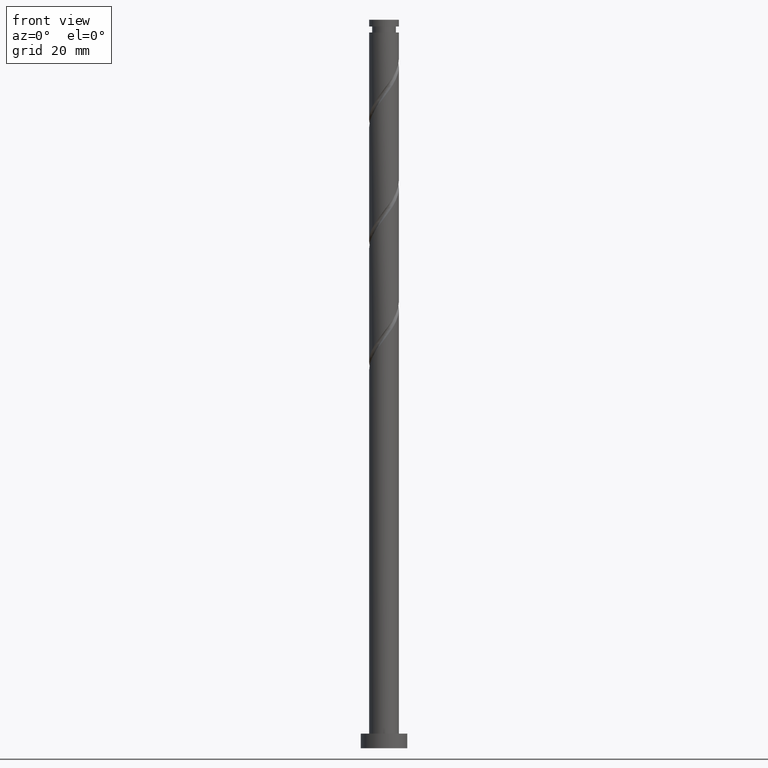
[diagram: clean part render]
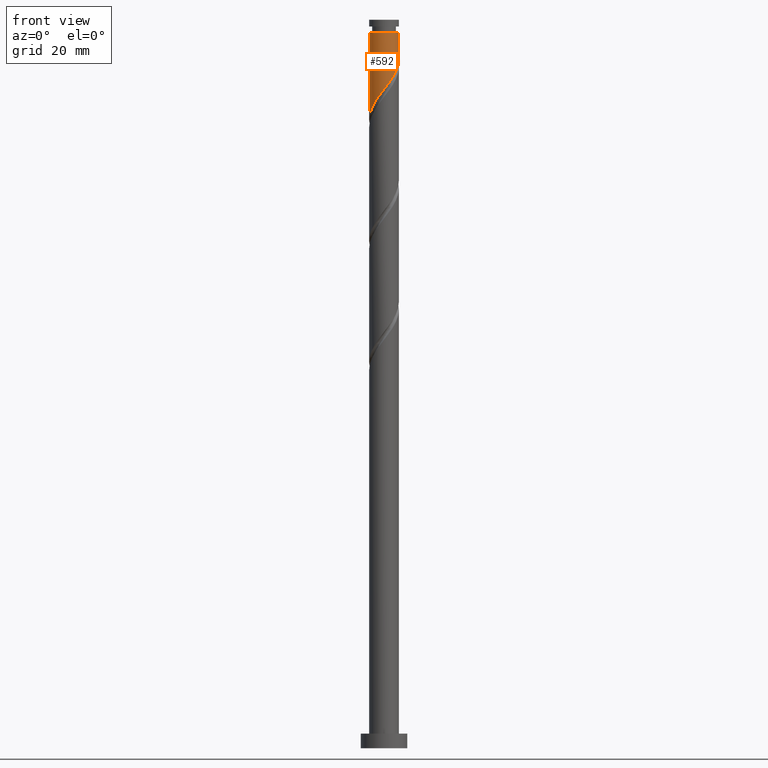
[diagram: same view with one face highlighted and labeled with its STEP entity id]
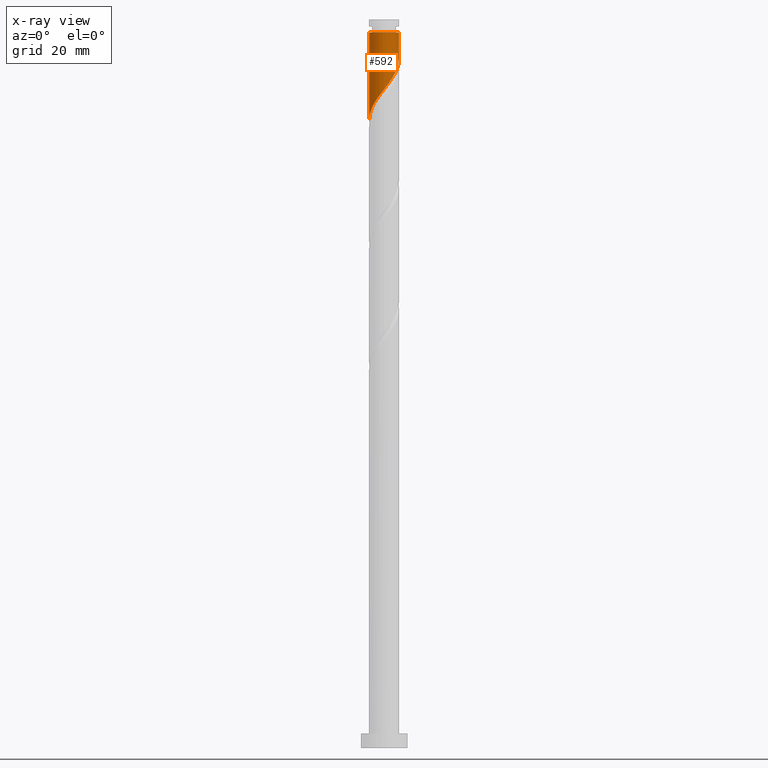
[diagram: x-ray of the same camera — body ghosted, the highlighted face saturated]
A machine part, front view. The second image highlights one B-rep face of the part: STEP entity #592.
The next image is the same camera in x-ray: the body ghosted, the highlighted face saturated — about 0% of this face is hidden behind the body in this view.
In plain terms, the highlighted cylindrical surface (edge-blend (fillet) strip) has radius 5.1 mm, axis along (-0, -0, -1).
Its self-contained STEP definition (entity closure, byte-faithful):
#94 = CARTESIAN_POINT ( 'NONE',  ( 1.424048439806746780, -4.897150808488948570, 228.0181063680705051 ) ) ;
#103 = CARTESIAN_POINT ( 'NONE',  ( 0.8294266765015200216, -5.070061594254849702, 227.2168243167884327 ) ) ;
#141 = CARTESIAN_POINT ( 'NONE',  ( 2.554633079098580062, -4.414051407853709641, 229.6206704706345647 ) ) ;
#296 = CARTESIAN_POINT ( 'NONE',  ( 3.982907504008061927, -3.244983974651748593, 232.0245166244806683 ) ) ;
#344 = ORIENTED_EDGE ( 'NONE', *, *, #1779, .F. ) ;
#347 = CARTESIAN_POINT ( 'NONE',  ( -5.099999999999984546, 0.000000000000000000, 245.6463114962756435 ) ) ;
#352 =( BOUNDED_CURVE ( )  B_SPLINE_CURVE ( 2, ( #1806, #849, #1681, #964, #975, #711, #1702, #296, #1522, #1384, #141, #408, #94, #103, #984, #828, #1540, #570, #702, #818, #1270, #1838, #1813, #1672, #392, #1393, #843, #1530, #1115 ),
 .UNSPECIFIED., .F., .T. ) 
 B_SPLINE_CURVE_WITH_KNOTS ( ( 3, 2, 2, 2, 2, 2, 2, 2, 2, 2, 2, 2, 2, 2, 3 ),
 ( 0.3045271625973832164, 0.3076923076923077094, 0.3173076923076922906, 0.3269230769230769273, 0.3365384615384615641, 0.3461538461538461453, 0.3557692307692307820, 0.3653846153846153633, 0.3750000000000000000, 0.3846153846153846367, 0.3942307692307692180, 0.4038461538461538547, 0.4134615384615384359, 0.4230769230769230727, 0.4295271625973832719 ),
 .UNSPECIFIED. ) 
 CURVE ( )  GEOMETRIC_REPRESENTATION_ITEM ( )  RATIONAL_B_SPLINE_CURVE ( ( 0.9061636035682767432, 0.9069090390690653924, 0.9090909090909219392, 0.9024626128164254801, 0.9090909090909219392, 0.9024626128164254801, 0.9090909090909219392, 0.9024626128164254801, 0.9090909090909219392, 0.9024626128164254801, 0.9090909090909219392, 0.9024626128164254801, 0.9090909090909219392, 0.9024626128164254801, 0.9090909090909219392, 0.9024626128164254801, 0.9090909090909219392, 0.9024626128164254801, 0.9090909090909219392, 0.9024626128164254801, 0.9090909090909219392, 0.9024626128164254801, 0.9090909090909219392, 0.9024626128164254801, 0.9090909090909219392, 0.9024626128164254801, 0.9090909090909219392, 0.9046444828382820269, 0.9061636035682767432 ) ) 
 REPRESENTATION_ITEM ( '' )  );
#358 = VECTOR ( 'NONE', #1266, 1000.000000000000000 ) ;
#376 = ORIENTED_EDGE ( 'NONE', *, *, #1433, .F. ) ;
#392 = CARTESIAN_POINT ( 'NONE',  ( -4.689794993926362565, -2.003951824506575274, 218.4027217526859204 ) ) ;
#406 = FACE_OUTER_BOUND ( 'NONE', #1274, .T. ) ;
#408 = CARTESIAN_POINT ( 'NONE',  ( 2.018670203111970984, -4.724240022723048327, 228.8193884193525491 ) ) ;
#484 = CIRCLE ( 'NONE', #1815, 5.099999999999984546 ) ;
#526 = DIRECTION ( 'NONE',  ( -0.000000000000000000, -0.000000000000000000, -1.000000000000000000 ) ) ;
#570 = CARTESIAN_POINT ( 'NONE',  ( -1.621754257993614612, -4.874770385147385809, 224.0116961116601999 ) ) ;
#585 = VERTEX_POINT ( 'NONE', #1821 ) ;
#592 = ADVANCED_FACE ( 'NONE', ( #406 ), #816, .T. ) ;
#628 = EDGE_CURVE ( 'NONE', #585, #899, #484, .T. ) ;
#662 = CARTESIAN_POINT ( 'NONE',  ( 0.000000000000000000, 0.000000000000000000, 250.0000000000000000 ) ) ;
#681 = LINE ( 'NONE', #810, #1592 ) ;
#702 = CARTESIAN_POINT ( 'NONE',  ( -2.181496098819616591, -4.609888802437081878, 223.2104140603782128 ) ) ;
#711 = CARTESIAN_POINT ( 'NONE',  ( 4.643746946077711435, -2.197518482749192703, 233.6270807270447847 ) ) ;
#712 = VERTEX_POINT ( 'NONE', #1717 ) ;
#780 = AXIS2_PLACEMENT_3D ( 'NONE', #662, #971, #1527 ) ;
#810 = CARTESIAN_POINT ( 'NONE',  ( -5.100000000000001421, 0.000000000000000000, 250.0000000000000000 ) ) ;
#816 = CYLINDRICAL_SURFACE ( 'NONE', #780, 5.100000000000001421 ) ;
#818 = CARTESIAN_POINT ( 'NONE',  ( -2.741237939645617683, -4.345007219726778835, 222.4091320090960835 ) ) ;
#828 = CARTESIAN_POINT ( 'NONE',  ( -0.4080201137038967918, -5.121229614852613743, 225.6142602142243163 ) ) ;
#843 = CARTESIAN_POINT ( 'NONE',  ( -5.033095136840517902, -0.8233792221767159969, 216.8001576501217755 ) ) ;
#849 = CARTESIAN_POINT ( 'NONE',  ( 5.100000000000000533, -0.2028429647175171158, 236.2933957898678727 ) ) ;
#899 = VERTEX_POINT ( 'NONE', #347 ) ;
#964 = CARTESIAN_POINT ( 'NONE',  ( 5.034708694974681542, -1.022341204283936156, 235.2296448296089579 ) ) ;
#971 = DIRECTION ( 'NONE',  ( -0.000000000000000000, -0.000000000000000000, -1.000000000000000000 ) ) ;
#975 = CARTESIAN_POINT ( 'NONE',  ( 4.839227820526198265, -1.609929843516566095, 234.4283627783269139 ) ) ;
#979 = LINE ( 'NONE', #1138, #358 ) ;
#984 = CARTESIAN_POINT ( 'NONE',  ( 0.2107032813988115039, -5.095645604553733499, 226.4155422655064172 ) ) ;
#989 = DIRECTION ( 'NONE',  ( -1.000000000000000000, 0.000000000000000000, 0.000000000000000000 ) ) ;
#1115 = CARTESIAN_POINT ( 'NONE',  ( -5.099999999999999645, -5.683256642648979922E-16, 215.7242333721675038 ) ) ;
#1138 = CARTESIAN_POINT ( 'NONE',  ( 5.100000000000001421, 6.245698675651502811E-16, 250.0000000000000000 ) ) ;
#1153 = VERTEX_POINT ( 'NONE', #1525 ) ;
#1266 = DIRECTION ( 'NONE',  ( -0.000000000000000000, -0.000000000000000000, -1.000000000000000000 ) ) ;
#1267 = CARTESIAN_POINT ( 'NONE',  ( 0.000000000000000000, 0.000000000000000000, 245.6463114962756435 ) ) ;
#1270 = CARTESIAN_POINT ( 'NONE',  ( -3.221324387942764211, -3.953867623940536369, 221.6078499578140679 ) ) ;
#1274 = EDGE_LOOP ( 'NONE', ( #376, #1415, #1300, #344 ) ) ;
#1300 = ORIENTED_EDGE ( 'NONE', *, *, #1646, .T. ) ;
#1384 = CARTESIAN_POINT ( 'NONE',  ( 3.090595955085186919, -4.103862792984370955, 230.4219525219166087 ) ) ;
#1393 = CARTESIAN_POINT ( 'NONE',  ( -4.933118798739816846, -1.434507615438206596, 217.6014397014037343 ) ) ;
#1415 = ORIENTED_EDGE ( 'NONE', *, *, #628, .T. ) ;
#1433 = EDGE_CURVE ( 'NONE', #585, #1153, #979, .T. ) ;
#1522 = CARTESIAN_POINT ( 'NONE',  ( 3.536751729546626866, -3.674423383818059108, 231.2232345731987095 ) ) ;
#1525 = CARTESIAN_POINT ( 'NONE',  ( 5.100000000000001421, -1.346034467995810998E-15, 236.5575667055008466 ) ) ;
#1527 = DIRECTION ( 'NONE',  ( -1.000000000000000000, 0.000000000000000000, 0.000000000000000000 ) ) ;
#1530 = CARTESIAN_POINT ( 'NONE',  ( -5.099999999999999645, -0.4144078365389324836, 216.2639341095158159 ) ) ;
#1540 = CARTESIAN_POINT ( 'NONE',  ( -1.014887185848754703, -4.998000000000000220, 224.8129781629423292 ) ) ;
#1565 = DIRECTION ( 'NONE',  ( -0.000000000000000000, -0.000000000000000000, -1.000000000000000000 ) ) ;
#1592 = VECTOR ( 'NONE', #526, 1000.000000000000000 ) ;
#1646 = EDGE_CURVE ( 'NONE', #899, #712, #681, .T. ) ;
#1672 = CARTESIAN_POINT ( 'NONE',  ( -4.446471189112907396, -2.573396033574942621, 219.2040038039679644 ) ) ;
#1681 = CARTESIAN_POINT ( 'NONE',  ( 5.083890084957950251, -0.4050451876843581545, 236.0309268808910304 ) ) ;
#1702 = CARTESIAN_POINT ( 'NONE',  ( 4.313327225042888458, -2.721251228700471536, 232.8257986757628544 ) ) ;
#1717 = CARTESIAN_POINT ( 'NONE',  ( -5.099999999999999645, -5.683256642648979922E-16, 215.7242333721675038 ) ) ;
#1779 = EDGE_CURVE ( 'NONE', #1153, #712, #352, .T. ) ;
#1806 = CARTESIAN_POINT ( 'NONE',  ( 5.100000000000001421, -1.346034467995810998E-15, 236.5575667055008182 ) ) ;
#1813 = CARTESIAN_POINT ( 'NONE',  ( -4.073941012676409734, -3.068062030864616929, 220.0052858552499799 ) ) ;
#1815 = AXIS2_PLACEMENT_3D ( 'NONE', #1267, #1565, #989 ) ;
#1821 = CARTESIAN_POINT ( 'NONE',  ( 5.099999999999984546, 6.245698675651491964E-16, 245.6463114962756435 ) ) ;
#1838 = CARTESIAN_POINT ( 'NONE',  ( -3.701410836239909852, -3.562728028154290794, 220.8065679065320239 ) ) ;